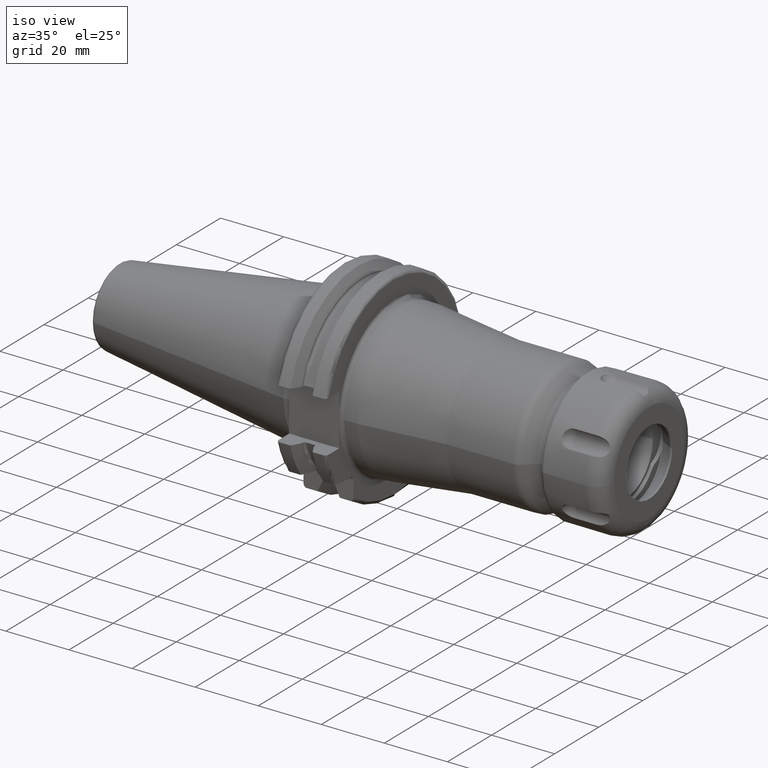
[diagram: clean part render]
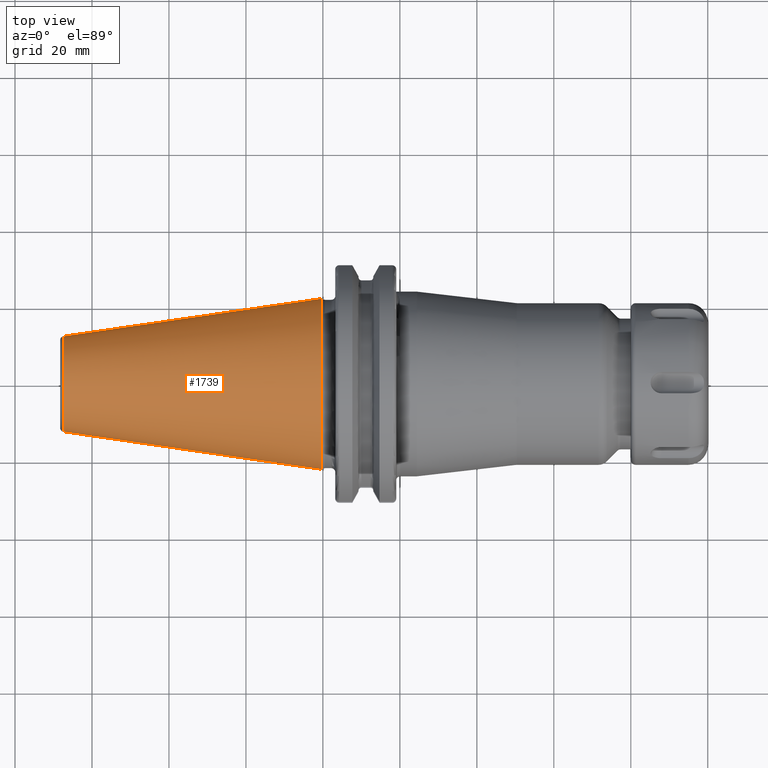
[diagram: tour spotlight — one face highlighted and labeled with its STEP entity id]
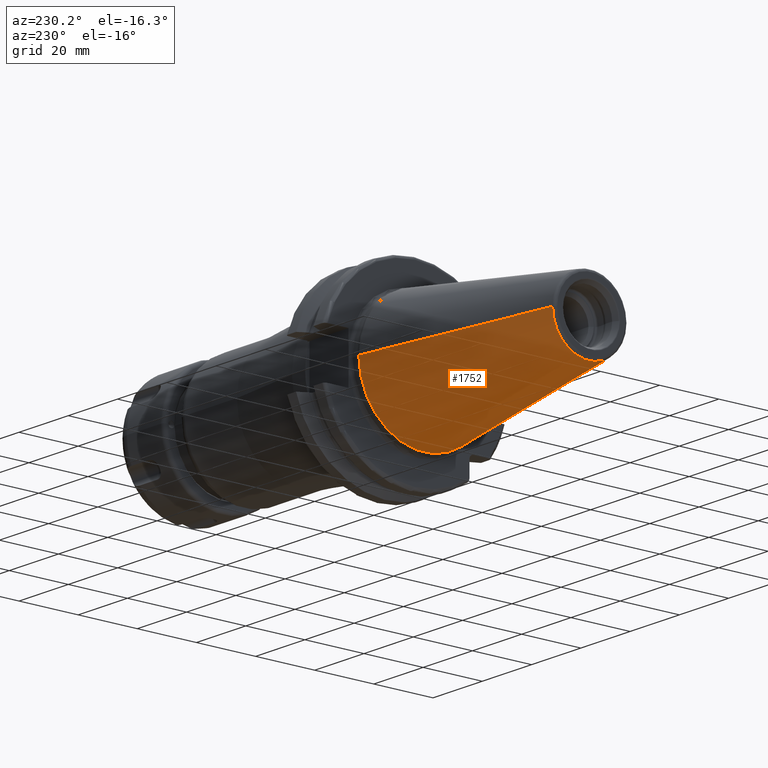
[diagram: tour spotlight — one face highlighted and labeled with its STEP entity id]
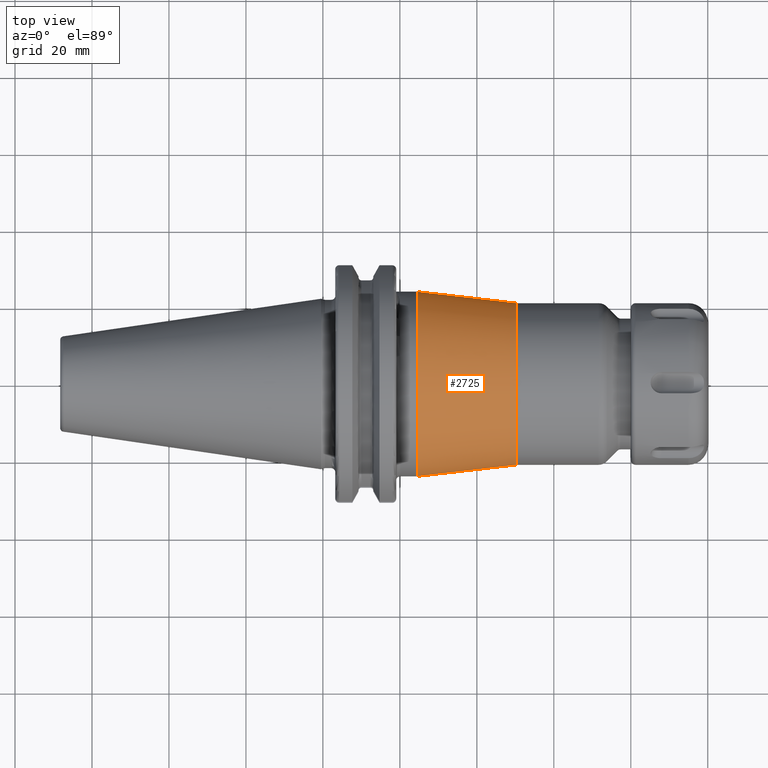
[diagram: tour spotlight — one face highlighted and labeled with its STEP entity id]
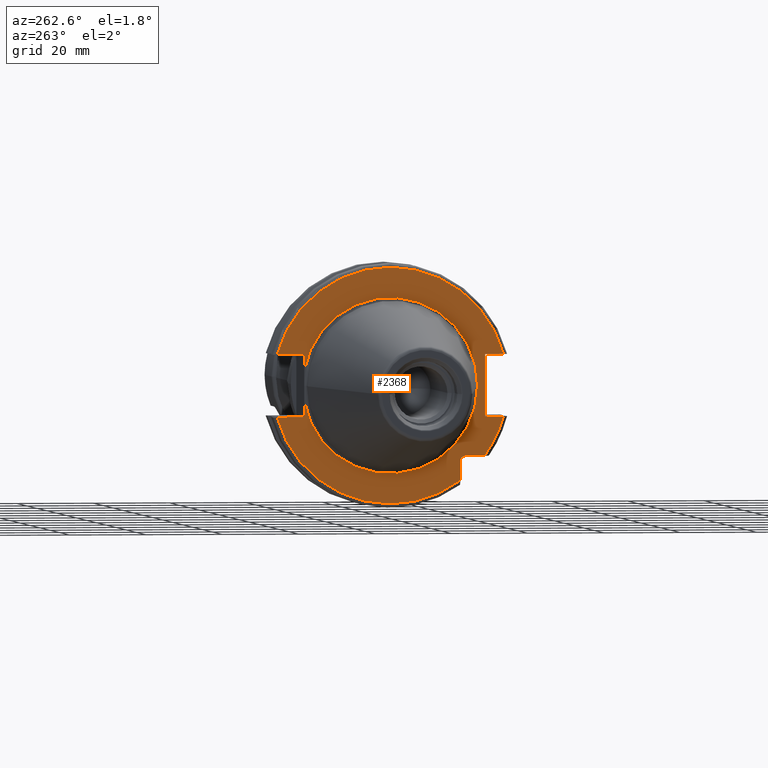
[diagram: tour spotlight — one face highlighted and labeled with its STEP entity id]
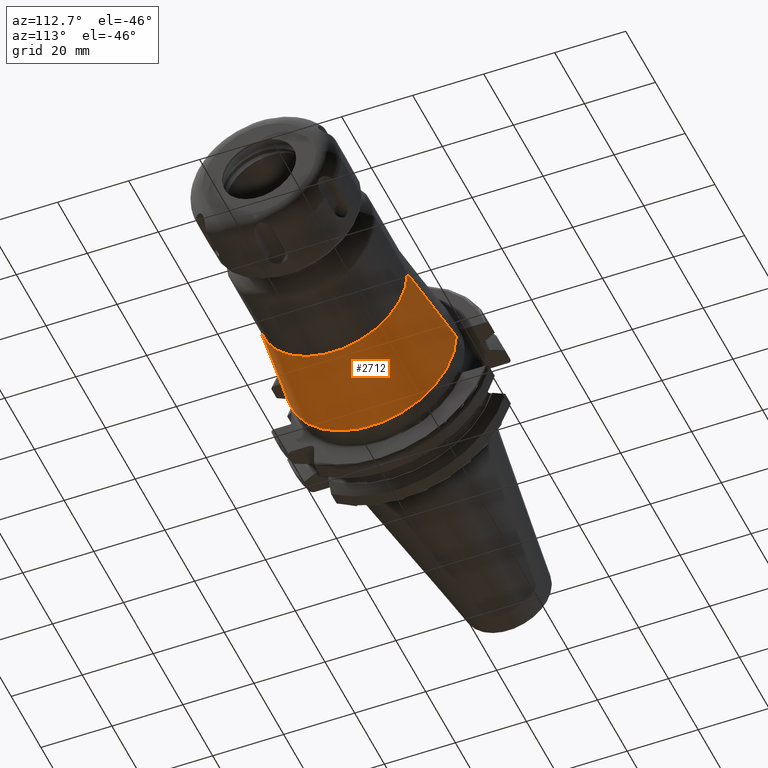
[diagram: tour spotlight — one face highlighted and labeled with its STEP entity id]
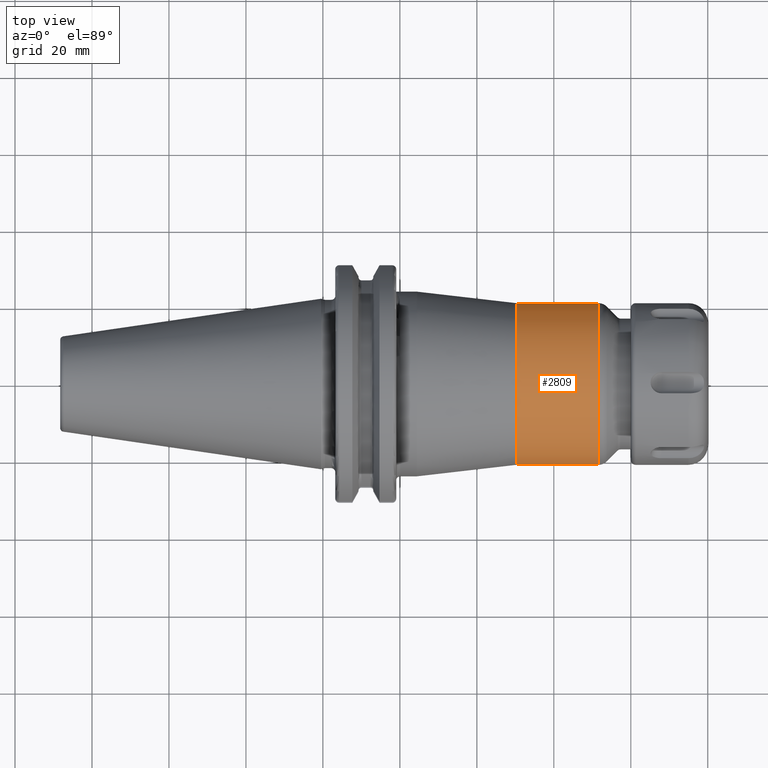
[diagram: tour spotlight — one face highlighted and labeled with its STEP entity id]
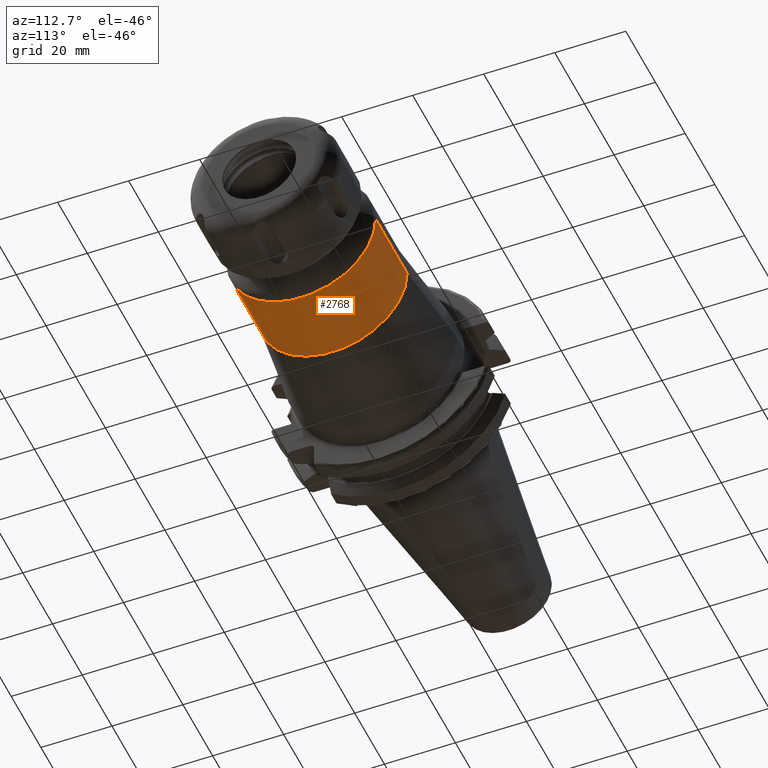
[diagram: tour spotlight — one face highlighted and labeled with its STEP entity id]
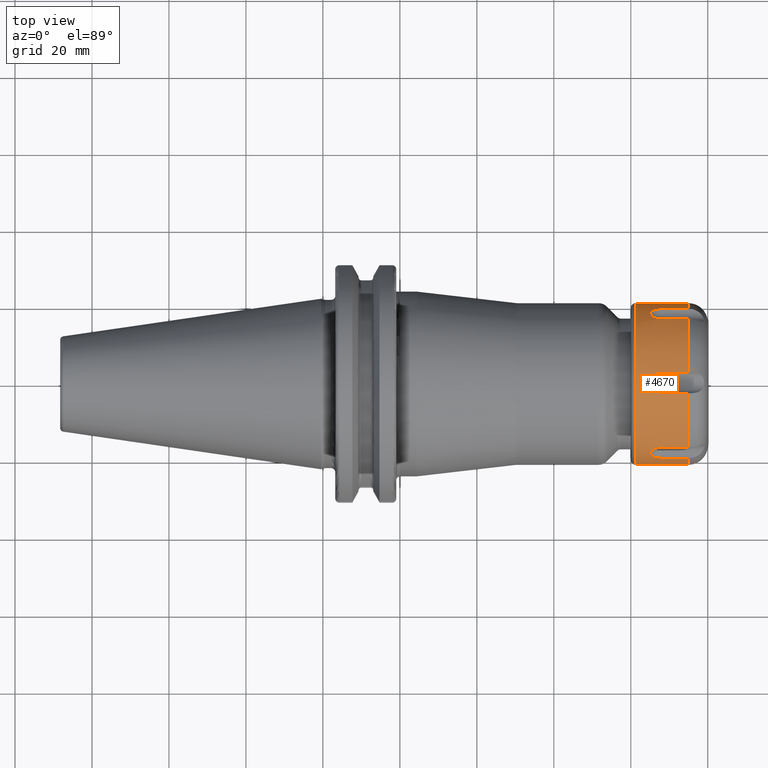
[diagram: tour spotlight — one face highlighted and labeled with its STEP entity id]
A machine part: a face-by-face anatomy tour. The part has 176 B-rep faces; the first image is the clean iso view, then the 8 largest visible faces are spotlighted one at a time (largest first), each with its STEP entity span.

Face 1 — top view, entity #1739. In plain terms, the highlighted conical surface has half-angle 8.298 deg.
Definition (entity closure, byte-faithful):
#37=CARTESIAN_POINT('',(-6.743710273571E1,0.E0,0.E0));
#38=DIRECTION('',(1.E0,0.E0,0.E0));
#39=DIRECTION('',(0.E0,1.E0,0.E0));
#40=AXIS2_PLACEMENT_3D('',#37,#38,#39);
#42=CARTESIAN_POINT('',(-4.896823332305E-1,0.E0,0.E0));
#43=DIRECTION('',(1.E0,0.E0,0.E0));
#44=DIRECTION('',(0.E0,1.E0,0.E0));
#45=AXIS2_PLACEMENT_3D('',#42,#43,#44);
#47=DIRECTION('',(-9.895312636440E-1,-1.443186691705E-1,0.E0));
#48=VECTOR('',#47,6.765568998391E1);
#49=CARTESIAN_POINT('',(-4.896823332305E-1,2.215358204157E1,0.E0));
#50=LINE('',#49,#48);
#51=DIRECTION('',(-9.895312636440E-1,1.443186691705E-1,0.E0));
#52=VECTOR('',#51,6.765568998391E1);
#53=CARTESIAN_POINT('',(-4.896823332305E-1,-2.215358204157E1,0.E0));
#54=LINE('',#53,#52);
#1387=CARTESIAN_POINT('',(-6.743710273571E1,1.238960290128E1,0.E0));
#1389=VERTEX_POINT('',#1387);
#1391=CARTESIAN_POINT('',(-6.743710273571E1,-1.238960290128E1,0.E0));
#1393=VERTEX_POINT('',#1391);
#1455=CARTESIAN_POINT('',(-4.896823332305E-1,2.215358204157E1,0.E0));
#1456=VERTEX_POINT('',#1455);
#1457=CARTESIAN_POINT('',(-4.896823332305E-1,-2.215358204157E1,0.E0));
#1458=VERTEX_POINT('',#1457);
#1725=CARTESIAN_POINT('',(-3.396339253447E1,0.E0,0.E0));
#1726=DIRECTION('',(1.E0,0.E0,0.E0));
#1727=DIRECTION('',(0.E0,-1.E0,0.E0));
#1728=AXIS2_PLACEMENT_3D('',#1725,#1726,#1727);
#1729=CONICAL_SURFACE('',#1728,1.727159247143E1,8.297826828206E0);
#1731=ORIENTED_EDGE('',*,*,#1730,.F.);
#1733=ORIENTED_EDGE('',*,*,#1732,.T.);
#1735=ORIENTED_EDGE('',*,*,#1734,.T.);
#1736=ORIENTED_EDGE('',*,*,#1718,.F.);
#1737=EDGE_LOOP('',(#1731,#1733,#1735,#1736));
#1738=FACE_OUTER_BOUND('',#1737,.F.);
#1739=ADVANCED_FACE('',(#1738),#1729,.T.);
#41=CIRCLE('',#40,1.238960290128E1);
#46=CIRCLE('',#45,2.215358204157E1);
#1718=EDGE_CURVE('',#1389,#1393,#41,.T.);
#1730=EDGE_CURVE('',#1456,#1389,#50,.T.);
#1732=EDGE_CURVE('',#1456,#1458,#46,.T.);
#1734=EDGE_CURVE('',#1458,#1393,#54,.T.);

Face 2 — auxiliary view, entity #1752. In plain terms, the highlighted conical surface has half-angle 8.298 deg.
Definition (entity closure, byte-faithful):
#32=CARTESIAN_POINT('',(-6.743710273571E1,0.E0,0.E0));
#33=DIRECTION('',(-1.E0,0.E0,0.E0));
#34=DIRECTION('',(0.E0,1.E0,0.E0));
#35=AXIS2_PLACEMENT_3D('',#32,#33,#34);
#47=DIRECTION('',(-9.895312636440E-1,-1.443186691705E-1,0.E0));
#48=VECTOR('',#47,6.765568998391E1);
#49=CARTESIAN_POINT('',(-4.896823332305E-1,2.215358204157E1,0.E0));
#50=LINE('',#49,#48);
#51=DIRECTION('',(-9.895312636440E-1,1.443186691705E-1,0.E0));
#52=VECTOR('',#51,6.765568998391E1);
#53=CARTESIAN_POINT('',(-4.896823332305E-1,-2.215358204157E1,0.E0));
#54=LINE('',#53,#52);
#55=CARTESIAN_POINT('',(-4.896823332305E-1,0.E0,0.E0));
#56=DIRECTION('',(-1.E0,0.E0,0.E0));
#57=DIRECTION('',(0.E0,1.E0,0.E0));
#58=AXIS2_PLACEMENT_3D('',#55,#56,#57);
#1387=CARTESIAN_POINT('',(-6.743710273571E1,1.238960290128E1,0.E0));
#1389=VERTEX_POINT('',#1387);
#1391=CARTESIAN_POINT('',(-6.743710273571E1,-1.238960290128E1,0.E0));
#1393=VERTEX_POINT('',#1391);
#1455=CARTESIAN_POINT('',(-4.896823332305E-1,2.215358204157E1,0.E0));
#1456=VERTEX_POINT('',#1455);
#1457=CARTESIAN_POINT('',(-4.896823332305E-1,-2.215358204157E1,0.E0));
#1458=VERTEX_POINT('',#1457);
#1740=CARTESIAN_POINT('',(-3.396339253447E1,0.E0,0.E0));
#1741=DIRECTION('',(1.E0,0.E0,0.E0));
#1742=DIRECTION('',(0.E0,-1.E0,0.E0));
#1743=AXIS2_PLACEMENT_3D('',#1740,#1741,#1742);
#1744=CONICAL_SURFACE('',#1743,1.727159247143E1,8.297826828206E0);
#1745=ORIENTED_EDGE('',*,*,#1730,.T.);
#1746=ORIENTED_EDGE('',*,*,#1707,.T.);
#1747=ORIENTED_EDGE('',*,*,#1734,.F.);
#1749=ORIENTED_EDGE('',*,*,#1748,.F.);
#1750=EDGE_LOOP('',(#1745,#1746,#1747,#1749));
#1751=FACE_OUTER_BOUND('',#1750,.F.);
#1752=ADVANCED_FACE('',(#1751),#1744,.T.);
#36=CIRCLE('',#35,1.238960290128E1);
#59=CIRCLE('',#58,2.215358204157E1);
#1707=EDGE_CURVE('',#1389,#1393,#36,.T.);
#1730=EDGE_CURVE('',#1456,#1389,#50,.T.);
#1734=EDGE_CURVE('',#1458,#1393,#54,.T.);
#1748=EDGE_CURVE('',#1456,#1458,#59,.T.);

Face 3 — top view, entity #2725. In plain terms, the highlighted conical surface has half-angle 6.582 deg.
Definition (entity closure, byte-faithful):
#998=DIRECTION('',(-9.934089358711E-1,-1.146241079851E-1,-5.585576630083E-13));
#999=VECTOR('',#998,2.594249844780E1);
#1000=CARTESIAN_POINT('',(5.032287744422E1,-2.100659106413E1,
-1.244907690348E-11));
#1001=LINE('',#1000,#999);
#1007=DIRECTION('',(-9.934089358711E-1,1.146241079851E-1,5.586869091880E-13));
#1008=VECTOR('',#1007,2.594249844780E1);
#1009=CARTESIAN_POINT('',(5.032287744422E1,2.100659106413E1,
1.244601208814E-11));
#1010=LINE('',#1009,#1008);
#1011=CARTESIAN_POINT('',(2.455136766735E1,0.E0,0.E0));
#1012=DIRECTION('',(-1.E0,0.E0,0.E0));
#1013=DIRECTION('',(0.E0,-1.E0,0.E0));
#1014=AXIS2_PLACEMENT_3D('',#1011,#1012,#1013);
#1016=CARTESIAN_POINT('',(5.032287744422E1,0.E0,0.E0));
#1017=DIRECTION('',(1.E0,0.E0,0.E0));
#1018=DIRECTION('',(0.E0,1.E0,0.E0));
#1019=AXIS2_PLACEMENT_3D('',#1016,#1017,#1018);
#1659=CARTESIAN_POINT('',(5.032287744422E1,-2.100659106413E1,0.E0));
#1660=CARTESIAN_POINT('',(5.032287744422E1,2.100659106413E1,0.E0));
#1661=VERTEX_POINT('',#1659);
#1662=VERTEX_POINT('',#1660);
#1675=CARTESIAN_POINT('',(2.455136766735E1,2.398022680761E1,0.E0));
#1676=CARTESIAN_POINT('',(2.455136766735E1,-2.398022680761E1,0.E0));
#1677=VERTEX_POINT('',#1675);
#1678=VERTEX_POINT('',#1676);
#2713=CARTESIAN_POINT('',(3.743712255578E1,0.E0,0.E0));
#2714=DIRECTION('',(-1.E0,0.E0,0.E0));
#2715=DIRECTION('',(0.E0,1.E0,0.E0));
#2716=AXIS2_PLACEMENT_3D('',#2713,#2714,#2715);
#2717=CONICAL_SURFACE('',#2716,2.249340893587E1,6.581944655178E0);
#2718=ORIENTED_EDGE('',*,*,#1930,.T.);
#2719=ORIENTED_EDGE('',*,*,#2708,.F.);
#2721=ORIENTED_EDGE('',*,*,#2720,.T.);
#2722=ORIENTED_EDGE('',*,*,#2704,.T.);
#2723=EDGE_LOOP('',(#2718,#2719,#2721,#2722));
#2724=FACE_OUTER_BOUND('',#2723,.F.);
#2725=ADVANCED_FACE('',(#2724),#2717,.T.);
#1015=CIRCLE('',#1014,2.398022680761E1);
#1020=CIRCLE('',#1019,2.100659106413E1);
#1930=EDGE_CURVE('',#1678,#1677,#1015,.T.);
#2704=EDGE_CURVE('',#1661,#1678,#1001,.T.);
#2708=EDGE_CURVE('',#1662,#1677,#1010,.T.);
#2720=EDGE_CURVE('',#1662,#1661,#1020,.T.);

Face 4 — auxiliary view, entity #2368. In plain terms, the highlighted planar face has unit normal (1, 0, 0).
Definition (entity closure, byte-faithful):
#117=CARTESIAN_POINT('',(3.2E0,0.E0,0.E0));
#118=DIRECTION('',(-1.E0,0.E0,0.E0));
#119=DIRECTION('',(0.E0,9.857923497268E-1,-1.679685780739E-1));
#120=AXIS2_PLACEMENT_3D('',#117,#118,#119);
#511=DIRECTION('',(0.E0,-1.E0,0.E0));
#512=VECTOR('',#511,4.990259339464E0);
#513=CARTESIAN_POINT('',(3.2E0,-1.97E1,-1.835E1));
#514=LINE('',#513,#512);
#515=DIRECTION('',(0.E0,0.E0,1.E0));
#516=VECTOR('',#515,4.990259339464E0);
#517=CARTESIAN_POINT('',(3.2E0,-1.835E1,-2.469025933946E1));
#518=LINE('',#517,#516);
#519=CARTESIAN_POINT('',(3.2E0,0.E0,0.E0));
#520=DIRECTION('',(-1.E0,0.E0,0.E0));
#521=DIRECTION('',(0.E0,9.647119303464E-1,-2.633075985372E-1));
#522=AXIS2_PLACEMENT_3D('',#519,#520,#521);
#524=DIRECTION('',(0.E0,-1.E0,0.E0));
#525=VECTOR('',#524,7.126950757280E0);
#526=CARTESIAN_POINT('',(3.2E0,2.967695075728E1,-8.1E0));
#527=LINE('',#526,#525);
#528=DIRECTION('',(0.E0,0.E0,-1.E0));
#529=VECTOR('',#528,4.257718776560E0);
#530=CARTESIAN_POINT('',(3.2E0,2.255E1,-3.842281223440E0));
#531=LINE('',#530,#529);
#532=DIRECTION('',(0.E0,0.E0,-1.E0));
#533=VECTOR('',#532,4.257718776560E0);
#534=CARTESIAN_POINT('',(3.2E0,2.255E1,8.1E0));
#535=LINE('',#534,#533);
#536=DIRECTION('',(0.E0,-1.E0,0.E0));
#537=VECTOR('',#536,7.126950757280E0);
#538=CARTESIAN_POINT('',(3.2E0,2.967695075728E1,8.1E0));
#539=LINE('',#538,#537);
#540=CARTESIAN_POINT('',(3.2E0,0.E0,0.E0));
#541=DIRECTION('',(1.E0,0.E0,0.E0));
#542=DIRECTION('',(0.E0,9.647119303464E-1,2.633075985372E-1));
#543=AXIS2_PLACEMENT_3D('',#540,#541,#542);
#545=DIRECTION('',(0.E0,1.E0,0.E0));
#546=VECTOR('',#545,4.826950757280E0);
#547=CARTESIAN_POINT('',(3.2E0,-2.967695075728E1,8.1E0));
#548=LINE('',#547,#546);
#549=DIRECTION('',(0.E0,0.E0,1.E0));
#550=VECTOR('',#549,1.62E1);
#551=CARTESIAN_POINT('',(3.2E0,-2.485E1,-8.1E0));
#552=LINE('',#551,#550);
#553=DIRECTION('',(0.E0,1.E0,0.E0));
#554=VECTOR('',#553,4.826950757280E0);
#555=CARTESIAN_POINT('',(3.2E0,-2.967695075728E1,-8.1E0));
#556=LINE('',#555,#554);
#557=CARTESIAN_POINT('',(3.2E0,0.E0,0.E0));
#558=DIRECTION('',(-1.E0,0.E0,0.E0));
#559=DIRECTION('',(0.E0,-8.026089992512E-1,-5.965054855750E-1));
#560=AXIS2_PLACEMENT_3D('',#557,#558,#559);
#571=CARTESIAN_POINT('',(3.2E0,-1.97E1,-1.97E1));
#572=DIRECTION('',(1.E0,0.E0,0.E0));
#573=DIRECTION('',(0.E0,1.E0,0.E0));
#574=AXIS2_PLACEMENT_3D('',#571,#572,#573);
#961=CARTESIAN_POINT('',(3.2E0,0.E0,0.E0));
#962=DIRECTION('',(1.E0,0.E0,0.E0));
#963=DIRECTION('',(0.E0,9.857923497268E-1,1.679685780739E-1));
#964=AXIS2_PLACEMENT_3D('',#961,#962,#963);
#1399=CARTESIAN_POINT('',(3.2E0,-2.2875E1,0.E0));
#1401=VERTEX_POINT('',#1399);
#1541=CARTESIAN_POINT('',(3.2E0,2.967695075728E1,8.1E0));
#1542=CARTESIAN_POINT('',(3.2E0,2.255E1,8.1E0));
#1543=VERTEX_POINT('',#1541);
#1544=VERTEX_POINT('',#1542);
#1545=CARTESIAN_POINT('',(3.2E0,2.255E1,3.842281223440E0));
#1546=VERTEX_POINT('',#1545);
#1547=CARTESIAN_POINT('',(3.2E0,2.255E1,-3.842281223440E0));
#1548=CARTESIAN_POINT('',(3.2E0,2.255E1,-8.1E0));
#1549=VERTEX_POINT('',#1547);
#1550=VERTEX_POINT('',#1548);
#1551=CARTESIAN_POINT('',(3.2E0,2.967695075728E1,-8.1E0));
#1552=VERTEX_POINT('',#1551);
#1553=CARTESIAN_POINT('',(3.2E0,-2.967695075728E1,-8.1E0));
#1554=CARTESIAN_POINT('',(3.2E0,-2.485E1,-8.1E0));
#1555=VERTEX_POINT('',#1553);
#1556=VERTEX_POINT('',#1554);
#1557=CARTESIAN_POINT('',(3.2E0,-2.485E1,8.1E0));
#1558=VERTEX_POINT('',#1557);
#1559=CARTESIAN_POINT('',(3.2E0,-2.967695075728E1,8.1E0));
#1560=VERTEX_POINT('',#1559);
#1586=CARTESIAN_POINT('',(3.2E0,-1.835E1,-2.469025933946E1));
#1587=VERTEX_POINT('',#1586);
#1594=CARTESIAN_POINT('',(3.2E0,-1.97E1,-1.835E1));
#1595=CARTESIAN_POINT('',(3.2E0,-2.469025933946E1,-1.835E1));
#1596=VERTEX_POINT('',#1594);
#1597=VERTEX_POINT('',#1595);
#1598=CARTESIAN_POINT('',(3.2E0,-1.835E1,-1.97E1));
#1599=VERTEX_POINT('',#1598);
#2339=CARTESIAN_POINT('',(3.2E0,0.E0,0.E0));
#2340=DIRECTION('',(1.E0,0.E0,0.E0));
#2341=DIRECTION('',(0.E0,-1.E0,0.E0));
#2342=AXIS2_PLACEMENT_3D('',#2339,#2340,#2341);
#2343=PLANE('',#2342);
#2345=ORIENTED_EDGE('',*,*,#2344,.F.);
#2347=ORIENTED_EDGE('',*,*,#2346,.F.);
#2349=ORIENTED_EDGE('',*,*,#2348,.F.);
#2351=ORIENTED_EDGE('',*,*,#2350,.F.);
#2352=ORIENTED_EDGE('',*,*,#1979,.T.);
#2353=ORIENTED_EDGE('',*,*,#1840,.F.);
#2354=ORIENTED_EDGE('',*,*,#1821,.T.);
#2356=ORIENTED_EDGE('',*,*,#2355,.F.);
#2357=ORIENTED_EDGE('',*,*,#1835,.F.);
#2358=ORIENTED_EDGE('',*,*,#1898,.F.);
#2360=ORIENTED_EDGE('',*,*,#2359,.T.);
#2361=ORIENTED_EDGE('',*,*,#2318,.T.);
#2362=ORIENTED_EDGE('',*,*,#2059,.F.);
#2363=ORIENTED_EDGE('',*,*,#2094,.F.);
#2365=ORIENTED_EDGE('',*,*,#2364,.F.);
#2366=EDGE_LOOP('',(#2345,#2347,#2349,#2351,#2352,#2353,#2354,#2356,#2357,#2358,
#2360,#2361,#2362,#2363,#2365));
#2367=FACE_OUTER_BOUND('',#2366,.F.);
#2368=ADVANCED_FACE('',(#2367),#2343,.F.);
#121=CIRCLE('',#120,2.2875E1);
#523=CIRCLE('',#522,3.07625E1);
#544=CIRCLE('',#543,3.07625E1);
#561=CIRCLE('',#560,3.07625E1);
#575=CIRCLE('',#574,1.35E0);
#965=CIRCLE('',#964,2.2875E1);
#1821=EDGE_CURVE('',#1549,#1401,#121,.T.);
#1835=EDGE_CURVE('',#1544,#1546,#535,.T.);
#1840=EDGE_CURVE('',#1549,#1550,#531,.T.);
#1898=EDGE_CURVE('',#1543,#1544,#539,.T.);
#1979=EDGE_CURVE('',#1552,#1550,#527,.T.);
#2059=EDGE_CURVE('',#1556,#1558,#552,.T.);
#2094=EDGE_CURVE('',#1555,#1556,#556,.T.);
#2318=EDGE_CURVE('',#1560,#1558,#548,.T.);
#2344=EDGE_CURVE('',#1596,#1597,#514,.T.);
#2346=EDGE_CURVE('',#1599,#1596,#575,.T.);
#2348=EDGE_CURVE('',#1587,#1599,#518,.T.);
#2350=EDGE_CURVE('',#1552,#1587,#523,.T.);
#2355=EDGE_CURVE('',#1546,#1401,#965,.T.);
#2359=EDGE_CURVE('',#1543,#1560,#544,.T.);
#2364=EDGE_CURVE('',#1597,#1555,#561,.T.);

Face 5 — auxiliary view, entity #2712. In plain terms, the highlighted conical surface has half-angle 6.582 deg.
Definition (entity closure, byte-faithful):
#993=CARTESIAN_POINT('',(2.455136766735E1,0.E0,0.E0));
#994=DIRECTION('',(-1.E0,0.E0,0.E0));
#995=DIRECTION('',(0.E0,1.E0,0.E0));
#996=AXIS2_PLACEMENT_3D('',#993,#994,#995);
#998=DIRECTION('',(-9.934089358711E-1,-1.146241079851E-1,-5.585576630083E-13));
#999=VECTOR('',#998,2.594249844780E1);
#1000=CARTESIAN_POINT('',(5.032287744422E1,-2.100659106413E1,
-1.244907690348E-11));
#1001=LINE('',#1000,#999);
#1002=CARTESIAN_POINT('',(5.032287744422E1,0.E0,0.E0));
#1003=DIRECTION('',(1.E0,0.E0,0.E0));
#1004=DIRECTION('',(0.E0,-1.E0,0.E0));
#1005=AXIS2_PLACEMENT_3D('',#1002,#1003,#1004);
#1007=DIRECTION('',(-9.934089358711E-1,1.146241079851E-1,5.586869091880E-13));
#1008=VECTOR('',#1007,2.594249844780E1);
#1009=CARTESIAN_POINT('',(5.032287744422E1,2.100659106413E1,
1.244601208814E-11));
#1010=LINE('',#1009,#1008);
#1659=CARTESIAN_POINT('',(5.032287744422E1,-2.100659106413E1,0.E0));
#1660=CARTESIAN_POINT('',(5.032287744422E1,2.100659106413E1,0.E0));
#1661=VERTEX_POINT('',#1659);
#1662=VERTEX_POINT('',#1660);
#1675=CARTESIAN_POINT('',(2.455136766735E1,2.398022680761E1,0.E0));
#1676=CARTESIAN_POINT('',(2.455136766735E1,-2.398022680761E1,0.E0));
#1677=VERTEX_POINT('',#1675);
#1678=VERTEX_POINT('',#1676);
#2698=CARTESIAN_POINT('',(3.743712255578E1,0.E0,0.E0));
#2699=DIRECTION('',(-1.E0,0.E0,0.E0));
#2700=DIRECTION('',(0.E0,1.E0,0.E0));
#2701=AXIS2_PLACEMENT_3D('',#2698,#2699,#2700);
#2702=CONICAL_SURFACE('',#2701,2.249340893587E1,6.581944655178E0);
#2703=ORIENTED_EDGE('',*,*,#1945,.T.);
#2705=ORIENTED_EDGE('',*,*,#2704,.F.);
#2707=ORIENTED_EDGE('',*,*,#2706,.T.);
#2709=ORIENTED_EDGE('',*,*,#2708,.T.);
#2710=EDGE_LOOP('',(#2703,#2705,#2707,#2709));
#2711=FACE_OUTER_BOUND('',#2710,.F.);
#2712=ADVANCED_FACE('',(#2711),#2702,.T.);
#997=CIRCLE('',#996,2.398022680761E1);
#1006=CIRCLE('',#1005,2.100659106413E1);
#1945=EDGE_CURVE('',#1677,#1678,#997,.T.);
#2704=EDGE_CURVE('',#1661,#1678,#1001,.T.);
#2706=EDGE_CURVE('',#1661,#1662,#1006,.T.);
#2708=EDGE_CURVE('',#1662,#1677,#1010,.T.);

Face 6 — top view, entity #2809. In plain terms, the highlighted cylindrical surface (partial cylindrical patch) has radius 21 mm, axis along (1, 0, 0).
Definition (entity closure, byte-faithful):
#1036=DIRECTION('',(-1.E0,0.E0,7.771760604084E-13));
#1037=VECTOR('',#1036,2.119985776068E1);
#1038=CARTESIAN_POINT('',(7.163735931288E1,2.1E1,-3.844755661661E-12));
#1039=LINE('',#1038,#1037);
#1045=DIRECTION('',(-1.E0,0.E0,-7.770711366838E-13));
#1046=VECTOR('',#1045,2.119985776068E1);
#1047=CARTESIAN_POINT('',(7.163735931288E1,-2.1E1,3.844087983422E-12));
#1048=LINE('',#1047,#1046);
#1059=CARTESIAN_POINT('',(7.163735931288E1,0.E0,0.E0));
#1060=DIRECTION('',(-1.E0,0.E0,0.E0));
#1061=DIRECTION('',(0.E0,-1.E0,0.E0));
#1062=AXIS2_PLACEMENT_3D('',#1059,#1060,#1061);
#1064=CARTESIAN_POINT('',(5.043750155220E1,0.E0,0.E0));
#1065=DIRECTION('',(1.E0,0.E0,0.E0));
#1066=DIRECTION('',(0.E0,1.E0,0.E0));
#1067=AXIS2_PLACEMENT_3D('',#1064,#1065,#1066);
#1600=CARTESIAN_POINT('',(7.163735931288E1,2.1E1,0.E0));
#1601=CARTESIAN_POINT('',(7.163735931288E1,-2.1E1,0.E0));
#1602=VERTEX_POINT('',#1600);
#1603=VERTEX_POINT('',#1601);
#1663=CARTESIAN_POINT('',(5.043750155220E1,-2.1E1,0.E0));
#1664=CARTESIAN_POINT('',(5.043750155220E1,2.1E1,0.E0));
#1665=VERTEX_POINT('',#1663);
#1666=VERTEX_POINT('',#1664);
#2798=CARTESIAN_POINT('',(1.53835E1,0.E0,0.E0));
#2799=DIRECTION('',(1.E0,0.E0,0.E0));
#2800=DIRECTION('',(0.E0,-1.E0,0.E0));
#2801=AXIS2_PLACEMENT_3D('',#2798,#2799,#2800);
#2802=CYLINDRICAL_SURFACE('',#2801,2.1E1);
#2803=ORIENTED_EDGE('',*,*,#2789,.F.);
#2804=ORIENTED_EDGE('',*,*,#2764,.T.);
#2805=ORIENTED_EDGE('',*,*,#2734,.F.);
#2806=ORIENTED_EDGE('',*,*,#2761,.F.);
#2807=EDGE_LOOP('',(#2803,#2804,#2805,#2806));
#2808=FACE_OUTER_BOUND('',#2807,.F.);
#2809=ADVANCED_FACE('',(#2808),#2802,.T.);
#1063=CIRCLE('',#1062,2.1E1);
#1068=CIRCLE('',#1067,2.1E1);
#2734=EDGE_CURVE('',#1666,#1665,#1068,.T.);
#2761=EDGE_CURVE('',#1602,#1666,#1039,.T.);
#2764=EDGE_CURVE('',#1603,#1665,#1048,.T.);
#2789=EDGE_CURVE('',#1603,#1602,#1063,.T.);

Face 7 — auxiliary view, entity #2768. In plain terms, the highlighted cylindrical surface (partial cylindrical patch) has radius 21 mm, axis along (1, 0, 0).
Definition (entity closure, byte-faithful):
#1031=CARTESIAN_POINT('',(7.163735931288E1,0.E0,0.E0));
#1032=DIRECTION('',(-1.E0,0.E0,0.E0));
#1033=DIRECTION('',(0.E0,1.E0,0.E0));
#1034=AXIS2_PLACEMENT_3D('',#1031,#1032,#1033);
#1036=DIRECTION('',(-1.E0,0.E0,7.771760604084E-13));
#1037=VECTOR('',#1036,2.119985776068E1);
#1038=CARTESIAN_POINT('',(7.163735931288E1,2.1E1,-3.844755661661E-12));
#1039=LINE('',#1038,#1037);
#1040=CARTESIAN_POINT('',(5.043750155220E1,0.E0,0.E0));
#1041=DIRECTION('',(1.E0,0.E0,0.E0));
#1042=DIRECTION('',(0.E0,-1.E0,0.E0));
#1043=AXIS2_PLACEMENT_3D('',#1040,#1041,#1042);
#1045=DIRECTION('',(-1.E0,0.E0,-7.770711366838E-13));
#1046=VECTOR('',#1045,2.119985776068E1);
#1047=CARTESIAN_POINT('',(7.163735931288E1,-2.1E1,3.844087983422E-12));
#1048=LINE('',#1047,#1046);
#1600=CARTESIAN_POINT('',(7.163735931288E1,2.1E1,0.E0));
#1601=CARTESIAN_POINT('',(7.163735931288E1,-2.1E1,0.E0));
#1602=VERTEX_POINT('',#1600);
#1603=VERTEX_POINT('',#1601);
#1663=CARTESIAN_POINT('',(5.043750155220E1,-2.1E1,0.E0));
#1664=CARTESIAN_POINT('',(5.043750155220E1,2.1E1,0.E0));
#1665=VERTEX_POINT('',#1663);
#1666=VERTEX_POINT('',#1664);
#2754=CARTESIAN_POINT('',(1.53835E1,0.E0,0.E0));
#2755=DIRECTION('',(1.E0,0.E0,0.E0));
#2756=DIRECTION('',(0.E0,-1.E0,0.E0));
#2757=AXIS2_PLACEMENT_3D('',#2754,#2755,#2756);
#2758=CYLINDRICAL_SURFACE('',#2757,2.1E1);
#2760=ORIENTED_EDGE('',*,*,#2759,.F.);
#2762=ORIENTED_EDGE('',*,*,#2761,.T.);
#2763=ORIENTED_EDGE('',*,*,#2748,.F.);
#2765=ORIENTED_EDGE('',*,*,#2764,.F.);
#2766=EDGE_LOOP('',(#2760,#2762,#2763,#2765));
#2767=FACE_OUTER_BOUND('',#2766,.F.);
#2768=ADVANCED_FACE('',(#2767),#2758,.T.);
#1035=CIRCLE('',#1034,2.1E1);
#1044=CIRCLE('',#1043,2.1E1);
#2748=EDGE_CURVE('',#1665,#1666,#1044,.T.);
#2759=EDGE_CURVE('',#1602,#1603,#1035,.T.);
#2761=EDGE_CURVE('',#1602,#1666,#1039,.T.);
#2764=EDGE_CURVE('',#1603,#1665,#1048,.T.);

Face 8 — top view, entity #4670. In plain terms, the highlighted cylindrical surface (partial cylindrical patch) has radius 21 mm, axis along (-1, 0, 0).
Definition (entity closure, byte-faithful):
#3453=CARTESIAN_POINT('',(1.25E0,0.E0,0.E0));
#3454=DIRECTION('',(1.E0,0.E0,0.E0));
#3455=DIRECTION('',(0.E0,1.E0,0.E0));
#3456=AXIS2_PLACEMENT_3D('',#3453,#3454,#3455);
#3463=DIRECTION('',(-1.E0,0.E0,0.E0));
#3464=VECTOR('',#3463,7.E0);
#3465=CARTESIAN_POINT('',(1.5E1,-1.663817640239E1,1.281292651985E1));
#3466=LINE('',#3465,#3464);
#3467=DIRECTION('',(-1.E0,0.E0,0.E0));
#3468=VECTOR('',#3467,7.E0);
#3469=CARTESIAN_POINT('',(1.5E1,-1.941540806421E1,8.002620177191E0));
#3470=LINE('',#3469,#3468);
#3471=CARTESIAN_POINT('',(1.5E1,0.E0,0.E0));
#3472=DIRECTION('',(1.E0,0.E0,0.E0));
#3473=DIRECTION('',(0.E0,-9.245432411526E-1,3.810771512948E-1));
#3474=AXIS2_PLACEMENT_3D('',#3471,#3472,#3473);
#3476=DIRECTION('',(-1.E0,0.E0,0.E0));
#3477=VECTOR('',#3476,1.375E1);
#3478=CARTESIAN_POINT('',(1.5E1,-2.1E1,0.E0));
#3479=LINE('',#3478,#3477);
#3480=DIRECTION('',(-1.E0,0.E0,0.E0));
#3481=VECTOR('',#3480,1.375E1);
#3482=CARTESIAN_POINT('',(1.5E1,2.1E1,0.E0));
#3483=LINE('',#3482,#3481);
#3484=CARTESIAN_POINT('',(1.5E1,0.E0,0.E0));
#3485=DIRECTION('',(1.E0,0.E0,0.E0));
#3486=DIRECTION('',(0.E0,1.E0,0.E0));
#3487=AXIS2_PLACEMENT_3D('',#3484,#3485,#3486);
#3489=DIRECTION('',(-1.E0,0.E0,0.E0));
#3490=VECTOR('',#3489,7.E0);
#3491=CARTESIAN_POINT('',(1.5E1,1.941540806421E1,8.002620177191E0));
#3492=LINE('',#3491,#3490);
#3493=DIRECTION('',(-1.E0,0.E0,0.E0));
#3494=VECTOR('',#3493,7.E0);
#3495=CARTESIAN_POINT('',(1.5E1,1.663817640239E1,1.281292651985E1));
#3496=LINE('',#3495,#3494);
#3497=CARTESIAN_POINT('',(1.5E1,0.E0,0.E0));
#3498=DIRECTION('',(1.E0,0.E0,0.E0));
#3499=DIRECTION('',(0.E0,7.922941143994E-1,6.101393580880E-1));
#3500=AXIS2_PLACEMENT_3D('',#3497,#3498,#3499);
#3502=DIRECTION('',(-1.E0,0.E0,0.E0));
#3503=VECTOR('',#3502,7.E0);
#3504=CARTESIAN_POINT('',(1.5E1,2.777231661817E0,2.081554669704E1));
#3505=LINE('',#3504,#3503);
#3506=DIRECTION('',(-1.E0,0.E0,0.E0));
#3507=VECTOR('',#3506,7.E0);
#3508=CARTESIAN_POINT('',(1.5E1,-2.777231661817E0,2.081554669704E1));
#3509=LINE('',#3508,#3507);
#3510=CARTESIAN_POINT('',(1.5E1,0.E0,0.E0));
#3511=DIRECTION('',(1.E0,0.E0,0.E0));
#3512=DIRECTION('',(0.E0,-1.322491267532E-1,9.912165093828E-1));
#3513=AXIS2_PLACEMENT_3D('',#3510,#3511,#3512);
#3571=CARTESIAN_POINT('',(8.E0,-2.777231661817E0,2.081554669704E1));
#3572=CARTESIAN_POINT('',(7.713585256897E0,-2.777231661817E0,2.081554669704E1));
#3573=CARTESIAN_POINT('',(7.189698955803E0,-2.695402054235E0,2.082663242171E1));
#3574=CARTESIAN_POINT('',(6.544827810621E0,-2.416700632465E0,2.086135715975E1));
#3575=CARTESIAN_POINT('',(6.052768499814E0,-2.053336157236E0,2.090058844841E1));
#3576=CARTESIAN_POINT('',(5.691337109872E0,-1.651792299919E0,2.093627495615E1));
#3577=CARTESIAN_POINT('',(5.440714546070E0,-1.243728041792E0,2.096444730841E1));
#3578=CARTESIAN_POINT('',(5.279619369182E0,-8.482172848915E-1,
2.098401635211E1));
#3579=CARTESIAN_POINT('',(5.191294318226E0,-4.882265082982E-1,
2.099522264439E1));
#3580=CARTESIAN_POINT('',(5.152469788636E0,-1.619323112456E-1,
2.100024817816E1));
#3581=CARTESIAN_POINT('',(5.153348931784E0,1.767592452421E-1,2.100013356651E1));
#3582=CARTESIAN_POINT('',(5.194193307893E0,5.039882272549E-1,2.099485003602E1));
#3583=CARTESIAN_POINT('',(5.284452527917E0,8.627307820165E-1,2.098341428788E1));
#3584=CARTESIAN_POINT('',(5.447262908379E0,1.256337410006E0,2.096368036319E1));
#3585=CARTESIAN_POINT('',(5.698854048506E0,1.661550436583E0,2.093548261352E1));
#3586=CARTESIAN_POINT('',(6.060408909263E0,2.059989723825E0,2.089991461179E1));
#3587=CARTESIAN_POINT('',(6.551630090025E0,2.420381362875E0,2.086091553484E1));
#3588=CARTESIAN_POINT('',(7.194796024454E0,2.696547917895E0,2.082647691231E1));
#3589=CARTESIAN_POINT('',(7.715547234175E0,2.777231661817E0,2.081554669704E1));
#3590=CARTESIAN_POINT('',(8.E0,2.777231661817E0,2.081554669704E1));
#3615=CARTESIAN_POINT('',(8.E0,1.663817640239E1,1.281292651985E1));
#3616=CARTESIAN_POINT('',(7.714629746884E0,1.663817640239E1,1.281292651985E1));
#3617=CARTESIAN_POINT('',(7.192285285766E0,1.668829378327E1,1.274811901155E1));
#3618=CARTESIAN_POINT('',(6.547255405237E0,1.685728144041E1,1.252471824162E1));
#3619=CARTESIAN_POINT('',(6.055244292313E0,1.707249919031E1,1.223030383342E1));
#3620=CARTESIAN_POINT('',(5.693707324375E0,1.730368469668E1,1.190118771247E1));
#3621=CARTESIAN_POINT('',(5.442721637291E0,1.753172719403E1,1.156258162778E1));
#3622=CARTESIAN_POINT('',(5.281081737261E0,1.774622349868E1,1.123030739956E1));
#3623=CARTESIAN_POINT('',(5.192171304510E0,1.793574095087E1,1.092460512455E1));
#3624=CARTESIAN_POINT('',(5.152680390818E0,1.810375486471E1,1.064381815528E1));
#3625=CARTESIAN_POINT('',(5.153097191235E0,1.827319872420E1,1.035022407159E1));
#3626=CARTESIAN_POINT('',(5.193583150121E0,1.843252809220E1,1.006378166754E1));
#3627=CARTESIAN_POINT('',(5.283397246192E0,1.860205826438E1,9.747381336529E0));
#3628=CARTESIAN_POINT('',(5.445818396791E0,1.878201026504E1,9.396302922483E0));
#3629=CARTESIAN_POINT('',(5.697136049114E0,1.896047392151E1,9.030823313221E0));
#3630=CARTESIAN_POINT('',(6.058600163019E0,1.912920151873E1,8.667399875013E0));
#3631=CARTESIAN_POINT('',(6.550010348993E0,1.927593154617E1,8.335146181985E0));
#3632=CARTESIAN_POINT('',(7.193736826507E0,1.938444653989E1,8.078168903595E0));
#3633=CARTESIAN_POINT('',(7.715147313201E0,1.941540806421E1,8.002620177191E0));
#3634=CARTESIAN_POINT('',(8.E0,1.941540806421E1,8.002620177191E0));
#4383=CARTESIAN_POINT('',(8.E0,-1.941540806421E1,8.002620177191E0));
#4384=CARTESIAN_POINT('',(7.713495797616E0,-1.941540806421E1,8.002620177191E0));
#4385=CARTESIAN_POINT('',(7.189456166031E0,-1.938407742535E1,8.079070172984E0));
#4386=CARTESIAN_POINT('',(6.544339209271E0,-1.927471255801E1,8.337995444573E0));
#4387=CARTESIAN_POINT('',(6.052293148158E0,-1.912693190384E1,8.672444655570E0));
#4388=CARTESIAN_POINT('',(5.690955165535E0,-1.895702103084E1,9.038107684709E0));
#4389=CARTESIAN_POINT('',(5.440464136227E0,-1.877738135614E1,9.405575326925E0));
#4390=CARTESIAN_POINT('',(5.279493487696E0,-1.859660648656E1,9.757797015739E0));
#4391=CARTESIAN_POINT('',(5.191259927621E0,-1.842639881140E1,1.007499525299E1));
#4392=CARTESIAN_POINT('',(5.152468765011E0,-1.826766222812E1,1.035997750662E1));
#4393=CARTESIAN_POINT('',(5.153351413422E0,-1.809828737252E1,1.065311322774E1));
#4394=CARTESIAN_POINT('',(5.194172201408E0,-1.793015651885E1,1.093376347117E1));
#4395=CARTESIAN_POINT('',(5.284349242799E0,-1.774098513744E1,1.123856689369E1));
#4396=CARTESIAN_POINT('',(5.447044338077E0,-1.752715212770E1,1.156949425329E1));
#4397=CARTESIAN_POINT('',(5.698493557344E0,-1.730016252109E1,1.190628214866E1));
#4398=CARTESIAN_POINT('',(6.059906837597E0,-1.707012216397E1,1.223359913214E1));
#4399=CARTESIAN_POINT('',(6.551124489157E0,-1.685606985262E1,1.252633151613E1));
#4400=CARTESIAN_POINT('',(7.194116608897E0,-1.668809366348E1,1.274837504397E1));
#4401=CARTESIAN_POINT('',(7.715267663358E0,-1.663817640239E1,1.281292651985E1));
#4402=CARTESIAN_POINT('',(8.E0,-1.663817640239E1,1.281292651985E1));
#4428=CARTESIAN_POINT('',(1.25E0,2.1E1,0.E0));
#4430=VERTEX_POINT('',#4428);
#4433=CARTESIAN_POINT('',(1.5E1,2.1E1,0.E0));
#4435=VERTEX_POINT('',#4433);
#4436=CARTESIAN_POINT('',(1.25E0,-2.1E1,0.E0));
#4438=VERTEX_POINT('',#4436);
#4441=CARTESIAN_POINT('',(1.5E1,-2.1E1,0.E0));
#4443=VERTEX_POINT('',#4441);
#4460=CARTESIAN_POINT('',(1.5E1,1.941540806421E1,8.002620177191E0));
#4461=CARTESIAN_POINT('',(8.E0,1.941540806421E1,8.002620177191E0));
#4462=VERTEX_POINT('',#4460);
#4463=VERTEX_POINT('',#4461);
#4464=CARTESIAN_POINT('',(1.5E1,1.663817640239E1,1.281292651985E1));
#4465=CARTESIAN_POINT('',(8.E0,1.663817640239E1,1.281292651985E1));
#4466=VERTEX_POINT('',#4464);
#4467=VERTEX_POINT('',#4465);
#4468=CARTESIAN_POINT('',(1.5E1,2.777231661817E0,2.081554669704E1));
#4469=CARTESIAN_POINT('',(8.E0,2.777231661817E0,2.081554669704E1));
#4470=VERTEX_POINT('',#4468);
#4471=VERTEX_POINT('',#4469);
#4472=CARTESIAN_POINT('',(1.5E1,-2.777231661817E0,2.081554669704E1));
#4473=CARTESIAN_POINT('',(8.E0,-2.777231661817E0,2.081554669704E1));
#4474=VERTEX_POINT('',#4472);
#4475=VERTEX_POINT('',#4473);
#4476=CARTESIAN_POINT('',(1.5E1,-1.663817640239E1,1.281292651985E1));
#4477=CARTESIAN_POINT('',(8.E0,-1.663817640239E1,1.281292651985E1));
#4478=VERTEX_POINT('',#4476);
#4479=VERTEX_POINT('',#4477);
#4480=CARTESIAN_POINT('',(1.5E1,-1.941540806421E1,8.002620177191E0));
#4481=CARTESIAN_POINT('',(8.E0,-1.941540806421E1,8.002620177191E0));
#4482=VERTEX_POINT('',#4480);
#4483=VERTEX_POINT('',#4481);
#4632=CARTESIAN_POINT('',(2.1E1,0.E0,0.E0));
#4633=DIRECTION('',(-1.E0,0.E0,0.E0));
#4634=DIRECTION('',(0.E0,1.E0,0.E0));
#4635=AXIS2_PLACEMENT_3D('',#4632,#4633,#4634);
#4636=CYLINDRICAL_SURFACE('',#4635,2.1E1);
#4638=ORIENTED_EDGE('',*,*,#4637,.T.);
#4640=ORIENTED_EDGE('',*,*,#4639,.F.);
#4642=ORIENTED_EDGE('',*,*,#4641,.F.);
#4644=ORIENTED_EDGE('',*,*,#4643,.T.);
#4646=ORIENTED_EDGE('',*,*,#4645,.T.);
#4647=ORIENTED_EDGE('',*,*,#4624,.F.);
#4649=ORIENTED_EDGE('',*,*,#4648,.F.);
#4651=ORIENTED_EDGE('',*,*,#4650,.T.);
#4653=ORIENTED_EDGE('',*,*,#4652,.T.);
#4655=ORIENTED_EDGE('',*,*,#4654,.F.);
#4657=ORIENTED_EDGE('',*,*,#4656,.F.);
#4659=ORIENTED_EDGE('',*,*,#4658,.T.);
#4661=ORIENTED_EDGE('',*,*,#4660,.T.);
#4663=ORIENTED_EDGE('',*,*,#4662,.F.);
#4665=ORIENTED_EDGE('',*,*,#4664,.F.);
#4667=ORIENTED_EDGE('',*,*,#4666,.T.);
#4668=EDGE_LOOP('',(#4638,#4640,#4642,#4644,#4646,#4647,#4649,#4651,#4653,#4655,
#4657,#4659,#4661,#4663,#4665,#4667));
#4669=FACE_OUTER_BOUND('',#4668,.F.);
#4670=ADVANCED_FACE('',(#4669),#4636,.T.);
#3457=CIRCLE('',#3456,2.1E1);
#3475=CIRCLE('',#3474,2.1E1);
#3488=CIRCLE('',#3487,2.1E1);
#3501=CIRCLE('',#3500,2.1E1);
#3514=CIRCLE('',#3513,2.1E1);
#3591=B_SPLINE_CURVE_WITH_KNOTS('',3,(#3571,#3572,#3573,#3574,#3575,#3576,#3577,
#3578,#3579,#3580,#3581,#3582,#3583,#3584,#3585,#3586,#3587,#3588,#3589,#3590),
.UNSPECIFIED.,.F.,.F.,(4,1,1,1,1,1,1,1,1,1,1,1,1,1,1,1,1,4),(0.E0,
5.882352941176E-2,1.176470588235E-1,1.764705882353E-1,2.352941176471E-1,
2.941176470588E-1,3.529411764706E-1,4.117647058824E-1,4.705882352941E-1,
5.294117647059E-1,5.882352941176E-1,6.470588235294E-1,7.058823529412E-1,
7.647058823529E-1,8.235294117647E-1,8.823529411765E-1,9.411764705882E-1,1.E0),
.UNSPECIFIED.);
#3635=B_SPLINE_CURVE_WITH_KNOTS('',3,(#3615,#3616,#3617,#3618,#3619,#3620,#3621,
#3622,#3623,#3624,#3625,#3626,#3627,#3628,#3629,#3630,#3631,#3632,#3633,#3634),
.UNSPECIFIED.,.F.,.F.,(4,1,1,1,1,1,1,1,1,1,1,1,1,1,1,1,1,4),(0.E0,
5.882352941176E-2,1.176470588235E-1,1.764705882353E-1,2.352941176471E-1,
2.941176470588E-1,3.529411764706E-1,4.117647058824E-1,4.705882352941E-1,
5.294117647059E-1,5.882352941176E-1,6.470588235294E-1,7.058823529412E-1,
7.647058823529E-1,8.235294117647E-1,8.823529411765E-1,9.411764705882E-1,1.E0),
.UNSPECIFIED.);
#4403=B_SPLINE_CURVE_WITH_KNOTS('',3,(#4383,#4384,#4385,#4386,#4387,#4388,#4389,
#4390,#4391,#4392,#4393,#4394,#4395,#4396,#4397,#4398,#4399,#4400,#4401,#4402),
.UNSPECIFIED.,.F.,.F.,(4,1,1,1,1,1,1,1,1,1,1,1,1,1,1,1,1,4),(0.E0,
5.882352941176E-2,1.176470588235E-1,1.764705882353E-1,2.352941176471E-1,
2.941176470588E-1,3.529411764706E-1,4.117647058824E-1,4.705882352941E-1,
5.294117647059E-1,5.882352941176E-1,6.470588235294E-1,7.058823529412E-1,
7.647058823529E-1,8.235294117647E-1,8.823529411765E-1,9.411764705882E-1,1.E0),
.UNSPECIFIED.);
#4624=EDGE_CURVE('',#4430,#4438,#3457,.T.);
#4637=EDGE_CURVE('',#4478,#4479,#3466,.T.);
#4639=EDGE_CURVE('',#4483,#4479,#4403,.T.);
#4641=EDGE_CURVE('',#4482,#4483,#3470,.T.);
#4643=EDGE_CURVE('',#4482,#4443,#3475,.T.);
#4645=EDGE_CURVE('',#4443,#4438,#3479,.T.);
#4648=EDGE_CURVE('',#4435,#4430,#3483,.T.);
#4650=EDGE_CURVE('',#4435,#4462,#3488,.T.);
#4652=EDGE_CURVE('',#4462,#4463,#3492,.T.);
#4654=EDGE_CURVE('',#4467,#4463,#3635,.T.);
#4656=EDGE_CURVE('',#4466,#4467,#3496,.T.);
#4658=EDGE_CURVE('',#4466,#4470,#3501,.T.);
#4660=EDGE_CURVE('',#4470,#4471,#3505,.T.);
#4662=EDGE_CURVE('',#4475,#4471,#3591,.T.);
#4664=EDGE_CURVE('',#4474,#4475,#3509,.T.);
#4666=EDGE_CURVE('',#4474,#4478,#3514,.T.);